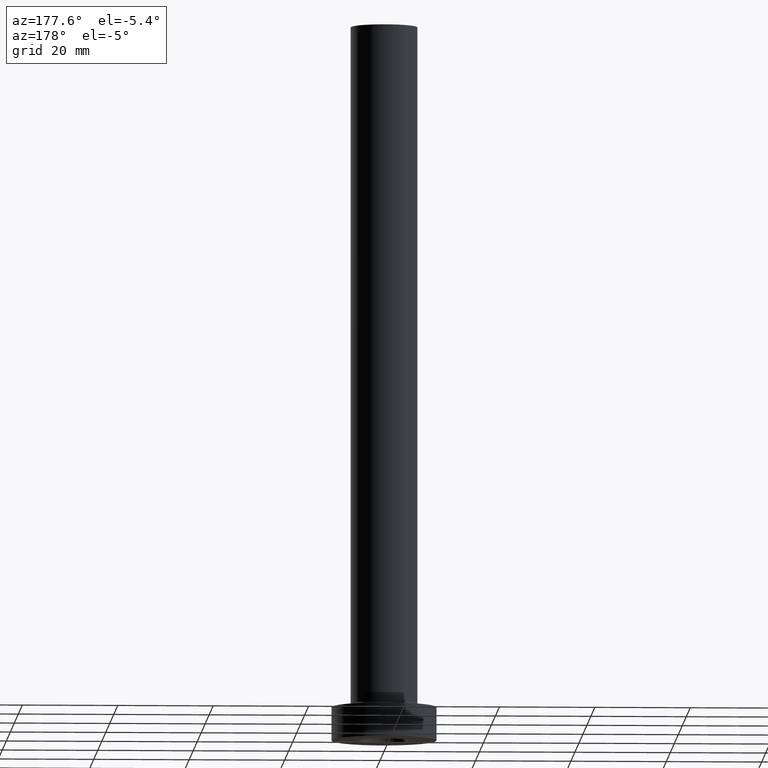
[diagram: clean part render]
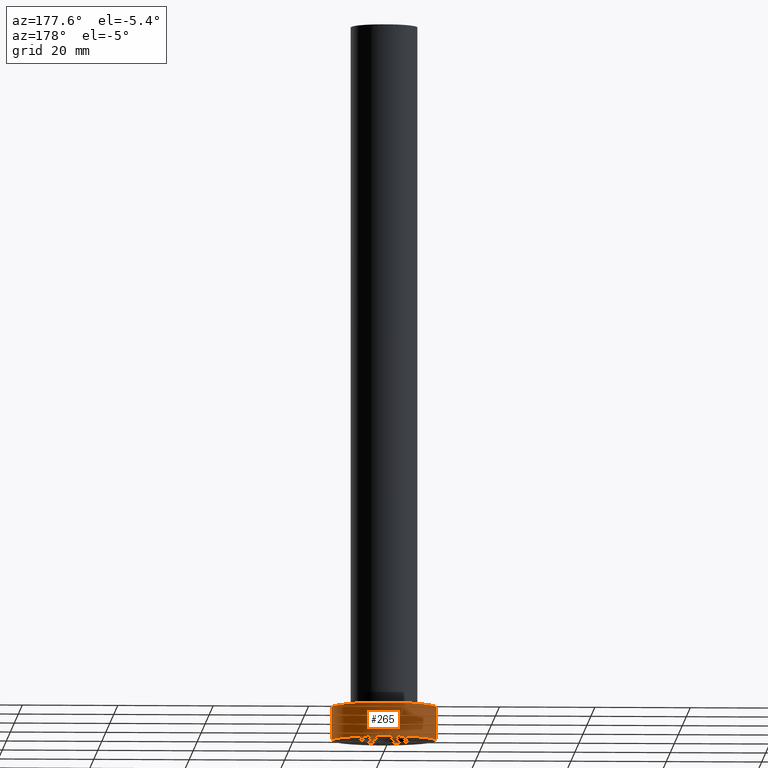
[diagram: same view with one face highlighted and labeled with its STEP entity id]
A machine part, auxiliary view. The second image highlights one B-rep face of the part: STEP entity #265.
In plain terms, the highlighted cylindrical surface (partial cylindrical patch) has radius 11 mm, axis along (-0, -0, -1).
Its self-contained STEP definition (entity closure, byte-faithful):
#51 = DIRECTION ( 'NONE',  ( 1.000000000000000000, 0.000000000000000000, 0.000000000000000000 ) ) ;
#65 = CYLINDRICAL_SURFACE ( 'NONE', #291, 11.00000000000000000 ) ;
#86 = ORIENTED_EDGE ( 'NONE', *, *, #388, .F. ) ;
#100 = CARTESIAN_POINT ( 'NONE',  ( 11.00000000000000000, 1.347111479062088405E-15, 7.000000000000000000 ) ) ;
#108 = ORIENTED_EDGE ( 'NONE', *, *, #118, .T. ) ;
#111 = CIRCLE ( 'NONE', #434, 11.00000000000000000 ) ;
#112 = DIRECTION ( 'NONE',  ( 0.000000000000000000, 0.000000000000000000, 1.000000000000000000 ) ) ;
#116 = CARTESIAN_POINT ( 'NONE',  ( 0.000000000000000000, 0.000000000000000000, 0.000000000000000000 ) ) ;
#118 = EDGE_CURVE ( 'NONE', #294, #250, #418, .T. ) ;
#125 = EDGE_CURVE ( 'NONE', #421, #339, #111, .T. ) ;
#161 = DIRECTION ( 'NONE',  ( -1.000000000000000000, 0.000000000000000000, 0.000000000000000000 ) ) ;
#168 = DIRECTION ( 'NONE',  ( -0.000000000000000000, -0.000000000000000000, -1.000000000000000000 ) ) ;
#169 = DIRECTION ( 'NONE',  ( -0.000000000000000000, -0.000000000000000000, -1.000000000000000000 ) ) ;
#170 = DIRECTION ( 'NONE',  ( -0.000000000000000000, -0.000000000000000000, -1.000000000000000000 ) ) ;
#178 = DIRECTION ( 'NONE',  ( 0.000000000000000000, 0.000000000000000000, 1.000000000000000000 ) ) ;
#179 = VECTOR ( 'NONE', #168, 1000.000000000000000 ) ;
#192 = CARTESIAN_POINT ( 'NONE',  ( 11.00000000000000000, 1.347111479062088405E-15, 0.000000000000000000 ) ) ;
#194 = LINE ( 'NONE', #304, #375 ) ;
#195 = LINE ( 'NONE', #416, #179 ) ;
#215 = ORIENTED_EDGE ( 'NONE', *, *, #405, .T. ) ;
#236 = EDGE_LOOP ( 'NONE', ( #419, #215, #108, #86 ) ) ;
#237 = CARTESIAN_POINT ( 'NONE',  ( -11.00000000000000000, 0.000000000000000000, 0.000000000000000000 ) ) ;
#244 = CARTESIAN_POINT ( 'NONE',  ( 0.000000000000000000, 0.000000000000000000, 7.000000000000000000 ) ) ;
#250 = VERTEX_POINT ( 'NONE', #237 ) ;
#264 = CARTESIAN_POINT ( 'NONE',  ( 0.000000000000000000, 0.000000000000000000, 7.000000000000000000 ) ) ;
#265 = ADVANCED_FACE ( 'NONE', ( #449 ), #65, .T. ) ;
#291 = AXIS2_PLACEMENT_3D ( 'NONE', #264, #169, #161 ) ;
#294 = VERTEX_POINT ( 'NONE', #192 ) ;
#304 = CARTESIAN_POINT ( 'NONE',  ( -11.00000000000000000, 0.000000000000000000, 7.000000000000000000 ) ) ;
#320 = DIRECTION ( 'NONE',  ( 1.000000000000000000, 0.000000000000000000, 0.000000000000000000 ) ) ;
#339 = VERTEX_POINT ( 'NONE', #400 ) ;
#368 = AXIS2_PLACEMENT_3D ( 'NONE', #116, #112, #320 ) ;
#375 = VECTOR ( 'NONE', #170, 1000.000000000000000 ) ;
#388 = EDGE_CURVE ( 'NONE', #339, #250, #194, .T. ) ;
#400 = CARTESIAN_POINT ( 'NONE',  ( -11.00000000000000000, 0.000000000000000000, 7.000000000000000000 ) ) ;
#405 = EDGE_CURVE ( 'NONE', #421, #294, #195, .T. ) ;
#416 = CARTESIAN_POINT ( 'NONE',  ( 11.00000000000000000, 1.347111479062088405E-15, 7.000000000000000000 ) ) ;
#418 = CIRCLE ( 'NONE', #368, 11.00000000000000000 ) ;
#419 = ORIENTED_EDGE ( 'NONE', *, *, #125, .F. ) ;
#421 = VERTEX_POINT ( 'NONE', #100 ) ;
#434 = AXIS2_PLACEMENT_3D ( 'NONE', #244, #178, #51 ) ;
#449 = FACE_OUTER_BOUND ( 'NONE', #236, .T. ) ;